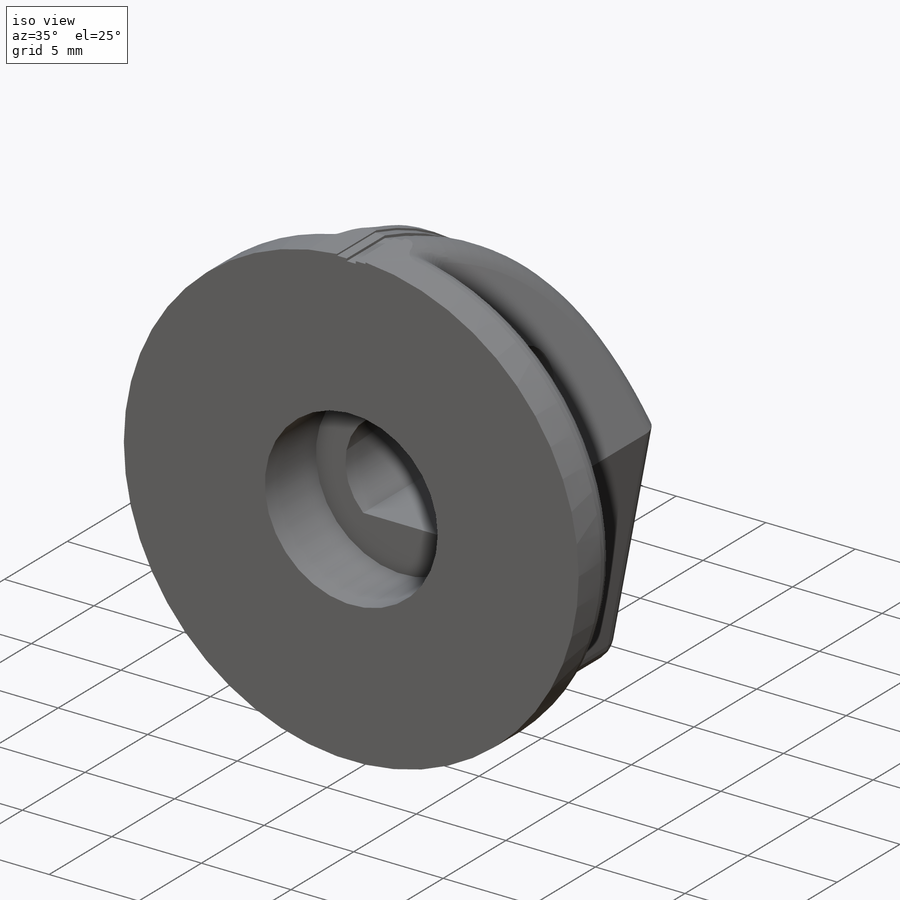
[diagram: iso view]
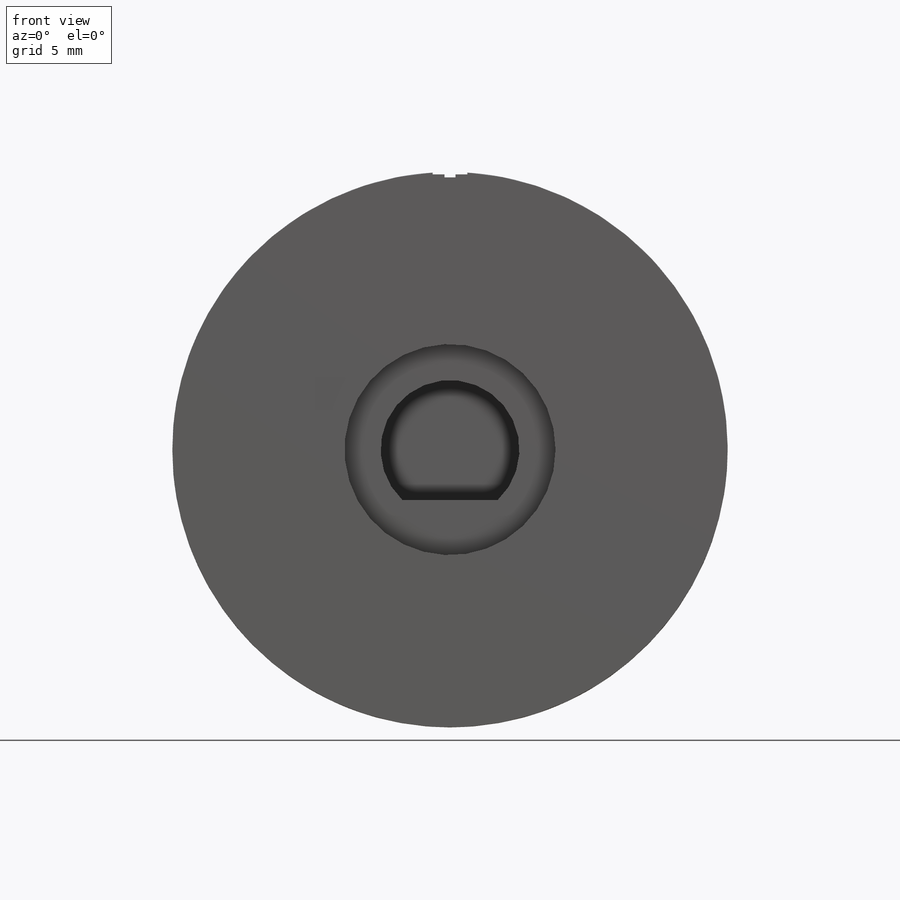
[diagram: front view]
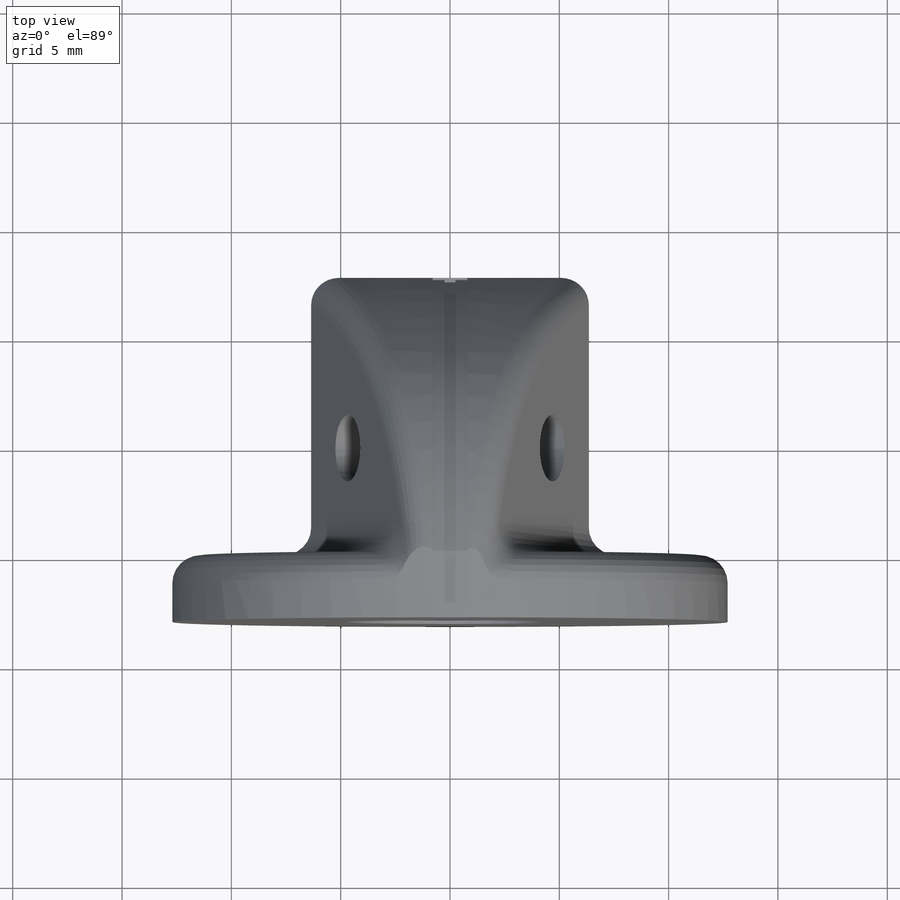
[diagram: top view]
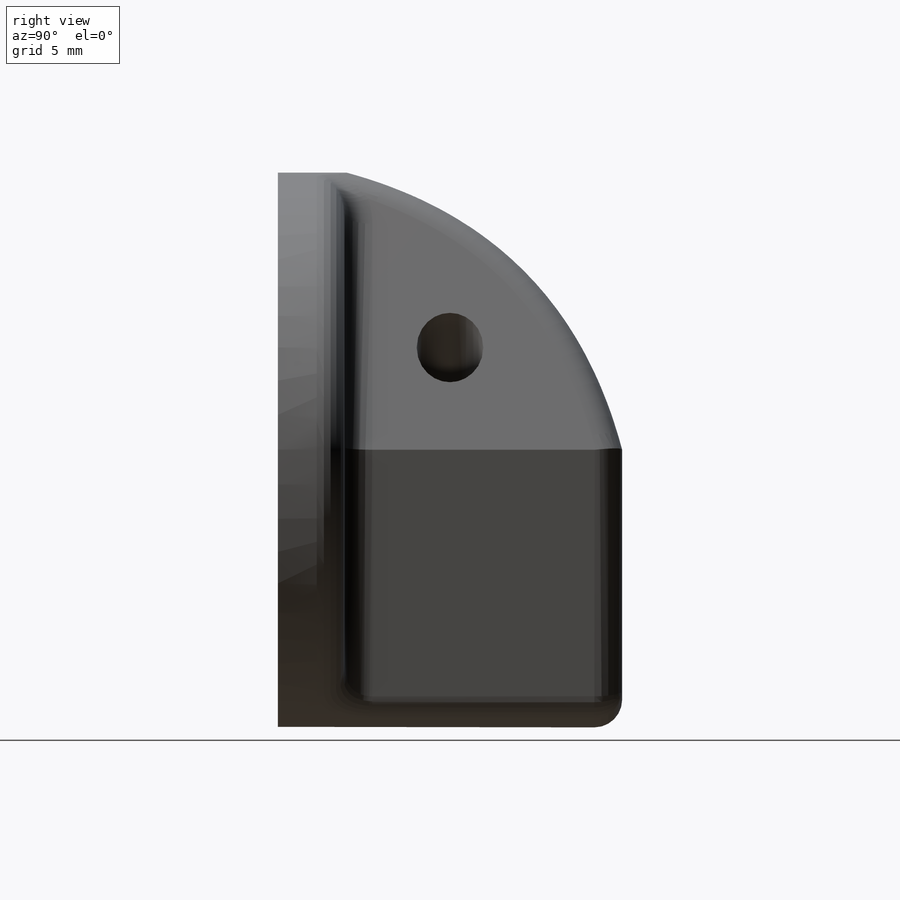
[diagram: right view]
SOLIDWORKS PART (.sldprt)
format: sldprt  version: not decoded by parser v0  size: 470,016 bytes
history: native  units: mm
features: sketch x11, cut_extrude x8, fillet x5, extrude x3, plane x2, material x1, mirror x1 (+11 scaffold rows collapsed)
feature tree (42):
  scaffold x11  (default folders/planes/origin — collapsed)
  material  "PMMA"
  sketch  "Skica2"  dims[D1=25.4mm]
  extrude  "Přidat vysunutím2"  Depth=3.048mm
  sketch  "Skica4"  dims[D1=12.7mm D2=7.874mm D3=12.7mm]
  extrude  "Přidat vysunutím3"  Depth=12.7mm
  sketch  "Skica6"  dims[D1=0.0mm D2=0.0mm]
  cut_extrude  "Odebrat vysunutím4"  Depth=12.7mm
  sketch  "Skica7"  dims[D1=0.0mm]
  cut_extrude  "Odebrat vysunutím5"  Depth=12.7mm
  sketch  "Skica8"  dims[D1=3.683mm]
  extrude  "Přidat vysunutím4"  Depth=12.7mm
  sketch  "Skica9"  dims[D1=12.7mm]
  cut_extrude  "Odebrat vysunutím6"  Depth=12.7mm
  sketch  "Skica10"  dims[D1=5.4864mm D2=5.4864mm]
  cut_extrude  "Odebrat vysunutím7"  Depth=13.462mm
  sketch  "Skica11"  dims[D1=9.652mm]
  cut_extrude  "Odebrat vysunutím8"  Depth=4.064mm
  plane  "Rovina1"
  plane  "Rovina2"  Offset=7.62mm
  sketch  "Skica13"  dims[D1=7.874mm]
  cut_extrude  "Odebrat vysunutím10"  Depth=10.16mm
  fillet  "Zaoblit2"  Radius=1.27mm
  fillet  "Zaoblit3"  Radius=1.27mm
  fillet  "Zaoblit4"  Radius=1.27mm
  fillet  "Zaoblit5"  Radius=1.27mm
  fillet  "Zaoblit6"  Radius=1.27mm
  mirror  "Zrcadlit1"
  sketch  "Skica14"  dims[D1=0.1016mm]
  cut_extrude  "Odebrat vysunutím11"  Depth=1.5875mm
  sketch  "Skica15"  dims[D1=0.2032mm]
  cut_extrude  "Odebrat vysunutím13"  Depth=0.508mm
decode coverage: 27 of 28 modeling features carry decoded parameters
note: suppression state not decoded; provenance and decode notes live in map.json
